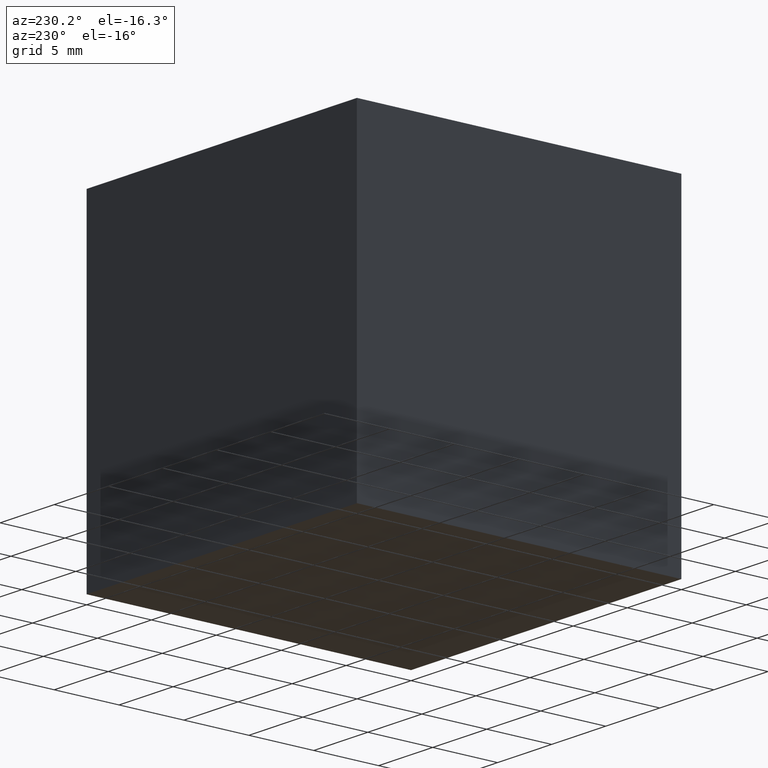
[diagram: clean part render]
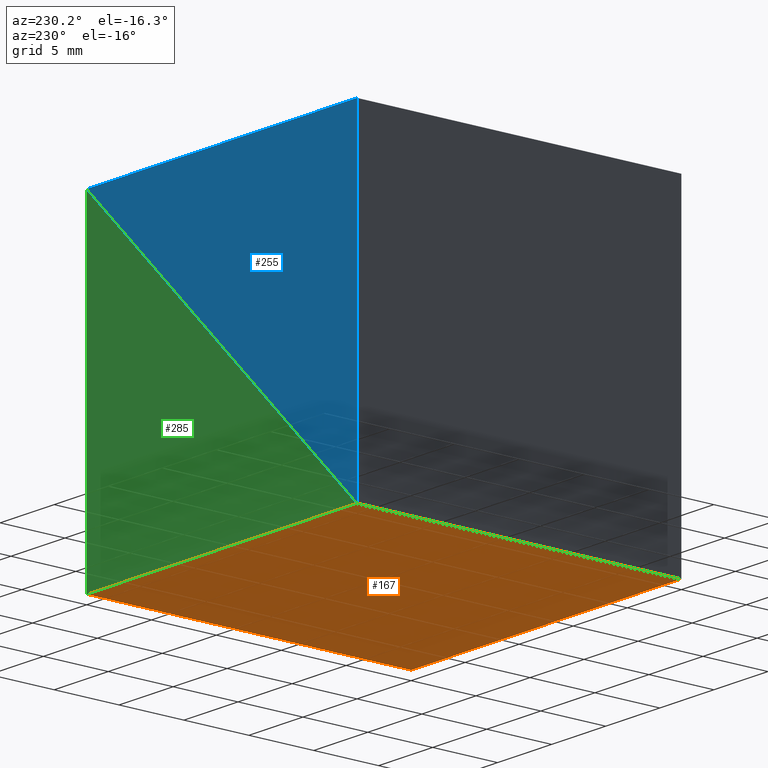
[diagram: same view with three faces highlighted in distinct colors, each labeled with its STEP entity id]
A machine part, auxiliary view with three faces highlighted in distinct colors.
Their STEP definitions:

[orange] entity #167 — the highlighted planar face has unit normal (0, -0, 1).
#31 = DIRECTION ( 'NONE',  ( -1.000000000000000000, 0.0000000000000000000, 0.0000000000000000000 ) ) ;
#32 = VERTEX_POINT ( 'NONE', #249 ) ;
#47 = DIRECTION ( 'NONE',  ( -0.0000000000000000000, -1.000000000000000000, -0.0000000000000000000 ) ) ;
#55 = CARTESIAN_POINT ( 'NONE',  ( -25.00000000000000000, 25.00000000000000000, -25.00000000000000000 ) ) ;
#56 = VERTEX_POINT ( 'NONE', #243 ) ;
#60 = LINE ( 'NONE', #103, #127 ) ;
#70 = EDGE_LOOP ( 'NONE', ( #191, #218, #107, #220 ) ) ;
#82 = LINE ( 'NONE', #55, #116 ) ;
#83 = VERTEX_POINT ( 'NONE', #260 ) ;
#102 = PLANE ( 'NONE',  #109 ) ;
#103 = CARTESIAN_POINT ( 'NONE',  ( 0.0000000000000000000, 25.00000000000000000, -25.00000000000000000 ) ) ;
#107 = ORIENTED_EDGE ( 'NONE', *, *, #183, .F. ) ;
#109 = AXIS2_PLACEMENT_3D ( 'NONE', #242, #113, #266 ) ;
#113 = DIRECTION ( 'NONE',  ( 0.0000000000000000000, -0.0000000000000000000, 1.000000000000000000 ) ) ;
#116 = VECTOR ( 'NONE', #47, 1000.000000000000000 ) ;
#127 = VECTOR ( 'NONE', #181, 1000.000000000000000 ) ;
#159 = EDGE_CURVE ( 'NONE', #83, #32, #204, .T. ) ;
#167 = ADVANCED_FACE ( 'NONE', ( #171 ), #102, .F. ) ;
#170 = VERTEX_POINT ( 'NONE', #197 ) ;
#171 = FACE_OUTER_BOUND ( 'NONE', #70, .T. ) ;
#175 = CARTESIAN_POINT ( 'NONE',  ( 0.0000000000000000000, 25.00000000000000000, -25.00000000000000000 ) ) ;
#181 = DIRECTION ( 'NONE',  ( -1.000000000000000000, 0.0000000000000000000, 0.0000000000000000000 ) ) ;
#183 = EDGE_CURVE ( 'NONE', #83, #170, #60, .T. ) ;
#191 = ORIENTED_EDGE ( 'NONE', *, *, #264, .T. ) ;
#195 = VECTOR ( 'NONE', #273, 1000.000000000000000 ) ;
#197 = CARTESIAN_POINT ( 'NONE',  ( -25.00000000000000000, 25.00000000000000000, -25.00000000000000000 ) ) ;
#204 = LINE ( 'NONE', #175, #195 ) ;
#205 = EDGE_CURVE ( 'NONE', #170, #56, #82, .T. ) ;
#218 = ORIENTED_EDGE ( 'NONE', *, *, #205, .F. ) ;
#220 = ORIENTED_EDGE ( 'NONE', *, *, #159, .T. ) ;
#236 = VECTOR ( 'NONE', #31, 1000.000000000000000 ) ;
#242 = CARTESIAN_POINT ( 'NONE',  ( 0.0000000000000000000, 25.00000000000000000, -25.00000000000000000 ) ) ;
#243 = CARTESIAN_POINT ( 'NONE',  ( -25.00000000000000000, 0.0000000000000000000, -25.00000000000000000 ) ) ;
#249 = CARTESIAN_POINT ( 'NONE',  ( 0.0000000000000000000, 0.0000000000000000000, -25.00000000000000000 ) ) ;
#260 = CARTESIAN_POINT ( 'NONE',  ( 0.0000000000000000000, 25.00000000000000000, -25.00000000000000000 ) ) ;
#264 = EDGE_CURVE ( 'NONE', #32, #56, #274, .T. ) ;
#266 = DIRECTION ( 'NONE',  ( 1.000000000000000000, 0.0000000000000000000, -0.0000000000000000000 ) ) ;
#273 = DIRECTION ( 'NONE',  ( -0.0000000000000000000, -1.000000000000000000, -0.0000000000000000000 ) ) ;
#274 = LINE ( 'NONE', #290, #236 ) ;
#290 = CARTESIAN_POINT ( 'NONE',  ( 0.0000000000000000000, 0.0000000000000000000, -25.00000000000000000 ) ) ;

[blue] entity #255 — the highlighted planar face has unit normal (0, 1, 0).
#12 = VERTEX_POINT ( 'NONE', #295 ) ;
#19 = ORIENTED_EDGE ( 'NONE', *, *, #219, .F. ) ;
#22 = PLANE ( 'NONE',  #71 ) ;
#24 = DIRECTION ( 'NONE',  ( -1.000000000000000000, -0.0000000000000000000, -0.0000000000000000000 ) ) ;
#33 = DIRECTION ( 'NONE',  ( 0.0000000000000000000, 1.000000000000000000, 0.0000000000000000000 ) ) ;
#36 = DIRECTION ( 'NONE',  ( 0.0000000000000000000, -0.0000000000000000000, 1.000000000000000000 ) ) ;
#53 = VECTOR ( 'NONE', #81, 1000.000000000000000 ) ;
#71 = AXIS2_PLACEMENT_3D ( 'NONE', #250, #33, #36 ) ;
#80 = LINE ( 'NONE', #280, #100 ) ;
#81 = DIRECTION ( 'NONE',  ( -0.0000000000000000000, -0.0000000000000000000, -1.000000000000000000 ) ) ;
#95 = CARTESIAN_POINT ( 'NONE',  ( 0.0000000000000000000, 25.00000000000000000, 0.0000000000000000000 ) ) ;
#100 = VECTOR ( 'NONE', #232, 1000.000000000000100 ) ;
#129 = LINE ( 'NONE', #156, #53 ) ;
#131 = ORIENTED_EDGE ( 'NONE', *, *, #200, .F. ) ;
#136 = VECTOR ( 'NONE', #24, 1000.000000000000000 ) ;
#145 = LINE ( 'NONE', #289, #136 ) ;
#151 = EDGE_LOOP ( 'NONE', ( #258, #131, #19 ) ) ;
#154 = FACE_OUTER_BOUND ( 'NONE', #151, .T. ) ;
#156 = CARTESIAN_POINT ( 'NONE',  ( -25.00000000000000000, 25.00000000000000000, -25.00000000000000000 ) ) ;
#166 = VERTEX_POINT ( 'NONE', #95 ) ;
#200 = EDGE_CURVE ( 'NONE', #12, #246, #129, .T. ) ;
#217 = EDGE_CURVE ( 'NONE', #246, #166, #80, .T. ) ;
#219 = EDGE_CURVE ( 'NONE', #166, #12, #145, .T. ) ;
#232 = DIRECTION ( 'NONE',  ( 0.7071067811865474600, 0.0000000000000000000, 0.7071067811865474600 ) ) ;
#246 = VERTEX_POINT ( 'NONE', #296 ) ;
#250 = CARTESIAN_POINT ( 'NONE',  ( 0.0000000000000000000, 25.00000000000000000, 0.0000000000000000000 ) ) ;
#255 = ADVANCED_FACE ( 'NONE', ( #154 ), #22, .T. ) ;
#258 = ORIENTED_EDGE ( 'NONE', *, *, #217, .F. ) ;
#280 = CARTESIAN_POINT ( 'NONE',  ( 0.0000000000000000000, 25.00000000000000000, 0.0000000000000000000 ) ) ;
#289 = CARTESIAN_POINT ( 'NONE',  ( -25.00000000000000000, 25.00000000000000000, 0.0000000000000000000 ) ) ;
#295 = CARTESIAN_POINT ( 'NONE',  ( -25.00000000000000000, 25.00000000000000000, 0.0000000000000000000 ) ) ;
#296 = CARTESIAN_POINT ( 'NONE',  ( -25.00000000000000000, 25.00000000000000000, -25.00000000000000000 ) ) ;

[green] entity #285 — the highlighted planar face has unit normal (-0, 1, 0).
#52 = CARTESIAN_POINT ( 'NONE',  ( -25.00000000000000000, 25.00000000000000000, -25.00000000000000000 ) ) ;
#60 = LINE ( 'NONE', #103, #127 ) ;
#66 = AXIS2_PLACEMENT_3D ( 'NONE', #85, #122, #134 ) ;
#83 = VERTEX_POINT ( 'NONE', #260 ) ;
#85 = CARTESIAN_POINT ( 'NONE',  ( 0.0000000000000000000, 25.00000000000000000, 0.0000000000000000000 ) ) ;
#86 = PLANE ( 'NONE',  #66 ) ;
#88 = VECTOR ( 'NONE', #229, 1000.000000000000100 ) ;
#94 = DIRECTION ( 'NONE',  ( 0.0000000000000000000, 0.0000000000000000000, -1.000000000000000000 ) ) ;
#96 = FACE_OUTER_BOUND ( 'NONE', #300, .T. ) ;
#99 = VERTEX_POINT ( 'NONE', #277 ) ;
#103 = CARTESIAN_POINT ( 'NONE',  ( 0.0000000000000000000, 25.00000000000000000, -25.00000000000000000 ) ) ;
#120 = LINE ( 'NONE', #52, #88 ) ;
#122 = DIRECTION ( 'NONE',  ( -0.0000000000000000000, 1.000000000000000000, 0.0000000000000000000 ) ) ;
#127 = VECTOR ( 'NONE', #181, 1000.000000000000000 ) ;
#134 = DIRECTION ( 'NONE',  ( 0.0000000000000000000, -0.0000000000000000000, 1.000000000000000000 ) ) ;
#140 = EDGE_CURVE ( 'NONE', #99, #83, #293, .T. ) ;
#157 = ORIENTED_EDGE ( 'NONE', *, *, #140, .T. ) ;
#162 = ORIENTED_EDGE ( 'NONE', *, *, #183, .T. ) ;
#164 = VECTOR ( 'NONE', #94, 1000.000000000000000 ) ;
#168 = ORIENTED_EDGE ( 'NONE', *, *, #298, .T. ) ;
#170 = VERTEX_POINT ( 'NONE', #197 ) ;
#181 = DIRECTION ( 'NONE',  ( -1.000000000000000000, 0.0000000000000000000, 0.0000000000000000000 ) ) ;
#183 = EDGE_CURVE ( 'NONE', #83, #170, #60, .T. ) ;
#189 = CARTESIAN_POINT ( 'NONE',  ( 0.0000000000000000000, 25.00000000000000000, 0.0000000000000000000 ) ) ;
#197 = CARTESIAN_POINT ( 'NONE',  ( -25.00000000000000000, 25.00000000000000000, -25.00000000000000000 ) ) ;
#229 = DIRECTION ( 'NONE',  ( 0.7071067811865474600, 0.0000000000000000000, 0.7071067811865474600 ) ) ;
#260 = CARTESIAN_POINT ( 'NONE',  ( 0.0000000000000000000, 25.00000000000000000, -25.00000000000000000 ) ) ;
#277 = CARTESIAN_POINT ( 'NONE',  ( 0.0000000000000000000, 25.00000000000000000, 0.0000000000000000000 ) ) ;
#285 = ADVANCED_FACE ( 'NONE', ( #96 ), #86, .T. ) ;
#293 = LINE ( 'NONE', #189, #164 ) ;
#298 = EDGE_CURVE ( 'NONE', #170, #99, #120, .T. ) ;
#300 = EDGE_LOOP ( 'NONE', ( #168, #157, #162 ) ) ;